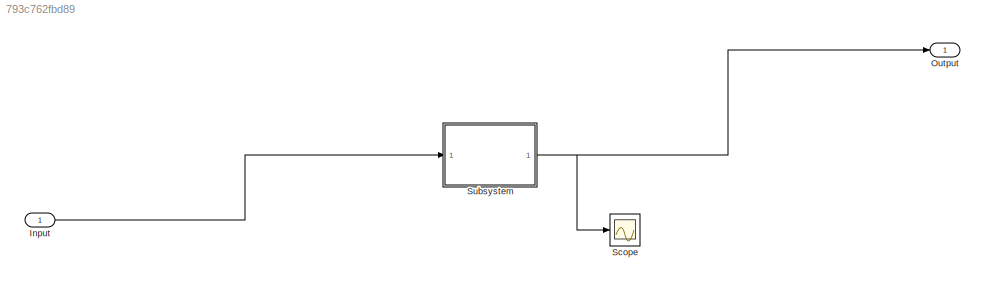
MODEL slx_793c762fbd89
KIND model
CONFIG AbsTol = auto
CONFIG EnableMultiTasking = off
CONFIG FixedStep = auto
CONFIG MaxStep = auto
CONFIG MinStep = auto
CONFIG RelTol = 1e-3
CONFIG SampleTimeConstraint = Unconstrained
CONFIG Solver = VariableStepAuto
CONFIG SolverName = VariableStepAuto
CONFIG StartTime = 0.0
CONFIG StopTime = 10.0
WORKSPACE source: mxarray member
WORKSPACE b: Simulink.Parameter (value not decoded)
WORKSPACE k: Simulink.Parameter (value not decoded)
WORKSPACE k1: Simulink.Parameter (value not decoded)
WORKSPACE k2: Simulink.Parameter (value not decoded)
BLOCK [Inport] Input
BLOCK [Outport] Output
BLOCK [Scope] Scope
  Floating = off
  NumInputPorts = 1
  Ports = [1]
  ScopeSpecificationString = Simulink.scopes.TimeScopeBlockCfg('CurrentConfiguration', extmgr.ConfigurationSet(extmgr.Configuration('Core','General UI',true),extmgr.Configuration('Core','Source UI',true),extmgr.Configuration('Sources','WiredSimulink',true),extmgr.Configuration('Visuals','Time Domain',true,'SerializedDisplays',{struct('MinYLimReal','-1.00000','MaxYLimReal','1.00000','YLabelReal','','MinYLimMag','0.00000','MaxY...<+1329ch>
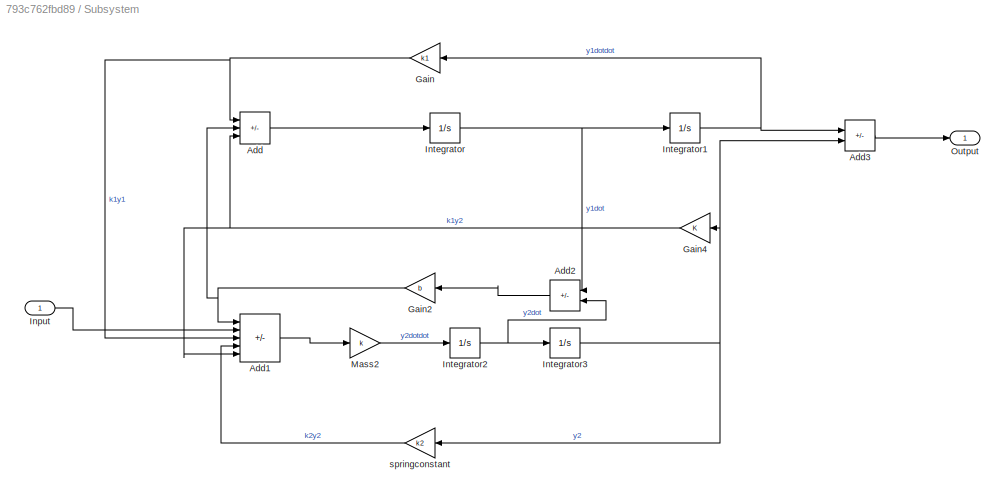
BLOCK [SubSystem] Subsystem
  Ports = [1, 1]
  RequestExecContextInheritance = off
BLOCK [Sum] Subsystem/Add
  IconShape = rectangular
  Inputs = --+
  Ports = [3, 1]
BLOCK [Sum] Subsystem/Add1
  IconShape = rectangular
  Inputs = +++-+
  Ports = [5, 1]
BLOCK [Sum] Subsystem/Add2
  IconShape = rectangular
  Inputs = +-
  NameLocation = top
  Ports = [2, 1]
BLOCK [Sum] Subsystem/Add3
  IconShape = rectangular
  Inputs = +-
  Ports = [2, 1]
BLOCK [Gain] Subsystem/Gain
  Gain = k1
  NameLocation = top
BLOCK [Gain] Subsystem/Gain2
  Gain = b
  NameLocation = top
BLOCK [Gain] Subsystem/Gain4
  NameLocation = top
BLOCK [Inport] Subsystem/Input
BLOCK [Integrator] Subsystem/Integrator
  Ports = [1, 1]
BLOCK [Integrator] Subsystem/Integrator1
  Ports = [1, 1]
BLOCK [Integrator] Subsystem/Integrator2
  Ports = [1, 1]
BLOCK [Integrator] Subsystem/Integrator3
  Ports = [1, 1]
BLOCK [Gain] Subsystem/Mass2
  Gain = k
BLOCK [Outport] Subsystem/Output
BLOCK [Gain] Subsystem/springconstant
  Gain = k2
  NameLocation = top
LINE Input:1 -> Subsystem:1
LINE Subsystem/Add1:1 -> Subsystem/Mass2:1
LINE Subsystem/Add2:1 -> Subsystem/Gain2:1
LINE Subsystem/Add3:1 -> Subsystem/Output:1
LINE Subsystem/Add:1 -> Subsystem/Integrator:1
NET Subsystem/Gain2:1 -> Subsystem/Add1:1, Subsystem/Add:2
NET Subsystem/Gain4:1 -> Subsystem/Add1:5, Subsystem/Add:3
NET Subsystem/Gain:1 -> Subsystem/Add1:3, Subsystem/Add:1
LINE Subsystem/Input:1 -> Subsystem/Add1:2
NET Subsystem/Integrator1:1 -> Subsystem/Add3:1, Subsystem/Gain:1
NET Subsystem/Integrator2:1 -> Subsystem/Add2:2, Subsystem/Integrator3:1
NET Subsystem/Integrator3:1 -> Subsystem/Add3:2, Subsystem/Gain4:1, Subsystem/springconstant:1
NET Subsystem/Integrator:1 -> Subsystem/Add2:1, Subsystem/Integrator1:1
LINE Subsystem/Mass2:1 -> Subsystem/Integrator2:1
LINE Subsystem/springconstant:1 -> Subsystem/Add1:4
NET Subsystem:1 -> Output:1, Scope:1
note: NET lines group one-source signal fan-out (src -> all destinations, sorted); 1:1 wires keep LINE
